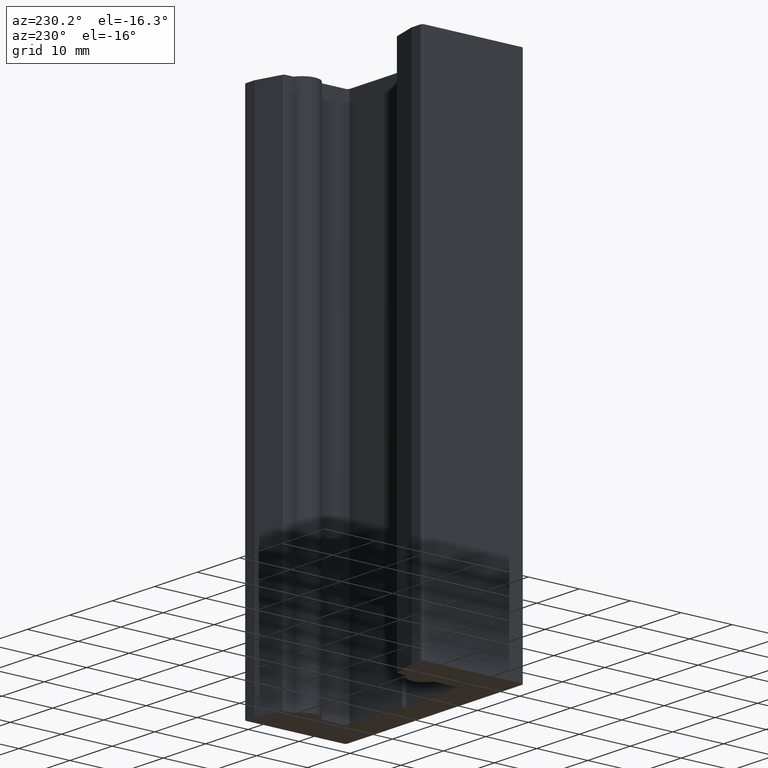
[diagram: clean part render]
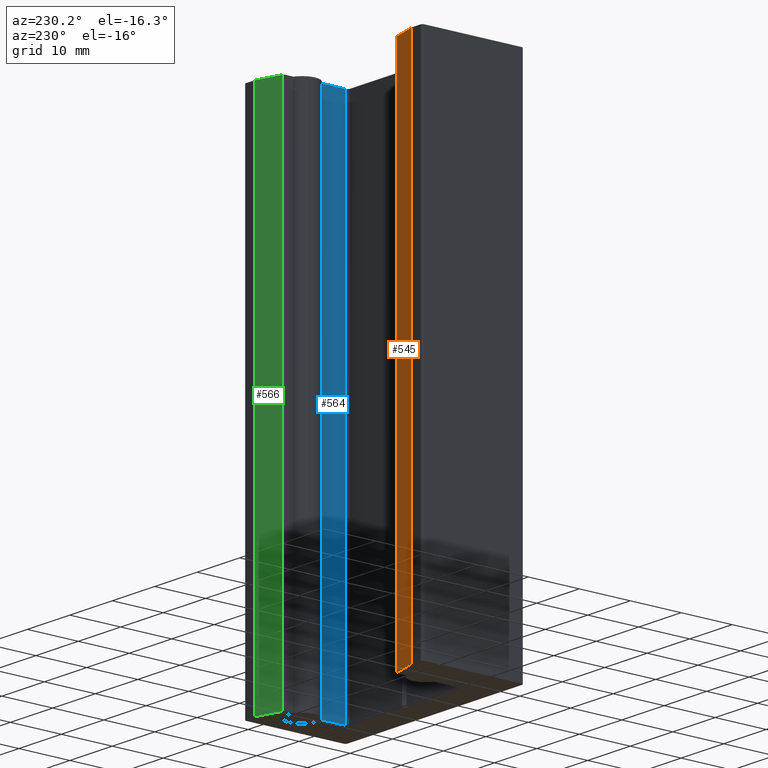
[diagram: same view with three faces highlighted in distinct colors, each labeled with its STEP entity id]
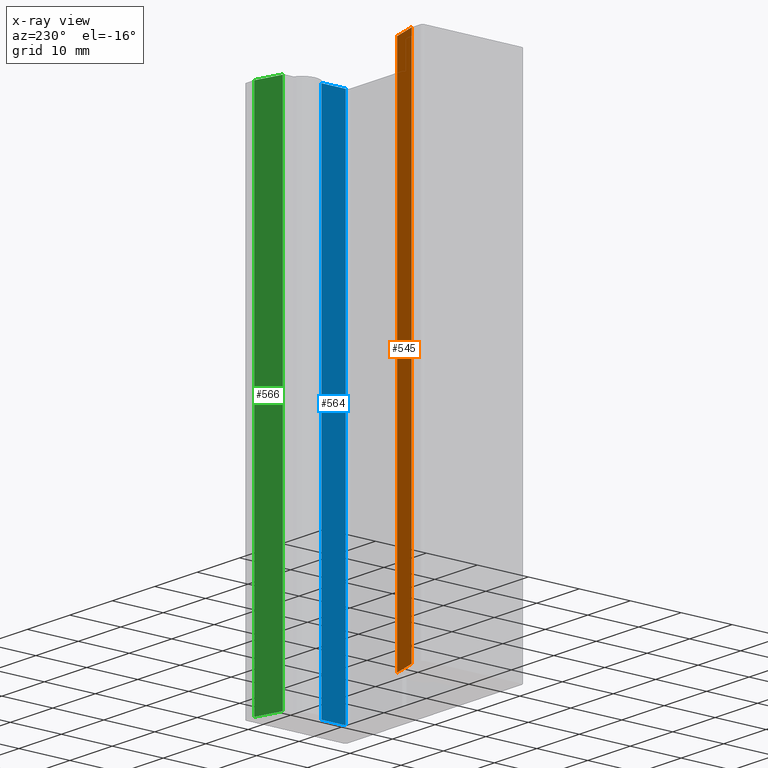
[diagram: x-ray of the same camera — body ghosted, the three highlighted faces saturated]
A machine part, auxiliary view with three faces highlighted in distinct colors.
The next image is the same camera in x-ray (body ghosted, the three faces saturated) — at least one of them is partly hidden behind the body in this view.
Their STEP definitions:

[orange] entity #545 — the highlighted planar face has unit normal (0.2588, 0.9659, 0).
#33=PLANE('',#653);
#54=FACE_OUTER_BOUND('',#84,.T.);
#84=EDGE_LOOP('',(#411,#412,#413,#414));
#121=LINE('',#904,#177);
#130=LINE('',#933,#186);
#131=LINE('',#936,#187);
#132=LINE('',#937,#188);
#177=VECTOR('',#726,10.);
#186=VECTOR('',#749,10.);
#187=VECTOR('',#752,10.);
#188=VECTOR('',#753,10.);
#259=VERTEX_POINT('',#901);
#260=VERTEX_POINT('',#903);
#272=VERTEX_POINT('',#929);
#274=VERTEX_POINT('',#935);
#313=EDGE_CURVE('',#260,#259,#121,.T.);
#328=EDGE_CURVE('',#260,#272,#130,.T.);
#329=EDGE_CURVE('',#259,#274,#131,.T.);
#330=EDGE_CURVE('',#274,#272,#132,.T.);
#411=ORIENTED_EDGE('',*,*,#328,.F.);
#412=ORIENTED_EDGE('',*,*,#313,.T.);
#413=ORIENTED_EDGE('',*,*,#329,.T.);
#414=ORIENTED_EDGE('',*,*,#330,.T.);
#545=ADVANCED_FACE('',(#54),#33,.T.);
#653=AXIS2_PLACEMENT_3D('',#934,#750,#751);
#726=DIRECTION('',(-0.965925826289068,0.258819045102521,0.));
#749=DIRECTION('',(0.,0.,1.));
#750=DIRECTION('center_axis',(0.258819045102521,0.965925826289068,0.));
#751=DIRECTION('ref_axis',(0.,0.,1.));
#752=DIRECTION('',(0.,0.,1.));
#753=DIRECTION('',(0.965925826289068,-0.258819045102521,0.));
#901=CARTESIAN_POINT('',(-18.5,20.,-50.));
#903=CARTESIAN_POINT('',(-13.4723542864693,18.6528463912296,-50.));
#904=CARTESIAN_POINT('',(-13.25,18.5932667397366,-50.));
#929=CARTESIAN_POINT('',(-13.4723542864693,18.6528463912296,50.));
#933=CARTESIAN_POINT('',(-13.4723542864693,18.6528463912296,0.));
#934=CARTESIAN_POINT('Origin',(-18.5,20.,0.));
#935=CARTESIAN_POINT('',(-18.5,20.,50.));
#936=CARTESIAN_POINT('',(-18.5,20.,0.));
#937=CARTESIAN_POINT('',(-13.25,18.5932667397366,50.));

[blue] entity #564 — the highlighted planar face has unit normal (-1, -0, 0).
#45=PLANE('',#679);
#73=FACE_OUTER_BOUND('',#103,.T.);
#103=EDGE_LOOP('',(#487,#488,#489,#490));
#128=LINE('',#926,#184);
#138=LINE('',#953,#194);
#162=LINE('',#1012,#218);
#163=LINE('',#1013,#219);
#184=VECTOR('',#741,10.);
#194=VECTOR('',#769,10.);
#218=VECTOR('',#835,10.);
#219=VECTOR('',#836,10.);
#270=VERTEX_POINT('',#923);
#271=VERTEX_POINT('',#925);
#279=VERTEX_POINT('',#951);
#293=VERTEX_POINT('',#1011);
#324=EDGE_CURVE('',#271,#270,#128,.T.);
#338=EDGE_CURVE('',#279,#270,#138,.T.);
#367=EDGE_CURVE('',#279,#293,#162,.T.);
#368=EDGE_CURVE('',#271,#293,#163,.T.);
#487=ORIENTED_EDGE('',*,*,#338,.F.);
#488=ORIENTED_EDGE('',*,*,#367,.T.);
#489=ORIENTED_EDGE('',*,*,#368,.F.);
#490=ORIENTED_EDGE('',*,*,#324,.T.);
#564=ADVANCED_FACE('',(#73),#45,.T.);
#679=AXIS2_PLACEMENT_3D('',#1010,#833,#834);
#741=DIRECTION('',(4.21111515108782E-16,-1.,0.));
#769=DIRECTION('',(0.,0.,-1.));
#833=DIRECTION('center_axis',(-1.,-4.21111515108782E-16,0.));
#834=DIRECTION('ref_axis',(0.,0.,1.));
#835=DIRECTION('',(-4.21111515108782E-16,1.,0.));
#836=DIRECTION('',(0.,0.,1.));
#923=CARTESIAN_POINT('',(13.25,6.5,-50.));
#925=CARTESIAN_POINT('',(13.25,11.2728219713411,-50.));
#926=CARTESIAN_POINT('',(13.25,11.2728219713411,-50.));
#951=CARTESIAN_POINT('',(13.25,6.5,50.));
#953=CARTESIAN_POINT('',(13.25,6.5,0.));
#1010=CARTESIAN_POINT('Origin',(13.25,6.,0.));
#1011=CARTESIAN_POINT('',(13.25,11.2728219713411,50.));
#1012=CARTESIAN_POINT('',(13.25,11.2728219713411,50.));
#1013=CARTESIAN_POINT('',(13.25,11.2728219713411,0.));

[green] entity #566 — the highlighted planar face has unit normal (-0.2588, 0.9659, 0).
#46=PLANE('',#682);
#75=FACE_OUTER_BOUND('',#105,.T.);
#105=EDGE_LOOP('',(#495,#496,#497,#498));
#110=LINE('',#872,#166);
#115=LINE('',#884,#171);
#146=LINE('',#974,#202);
#164=LINE('',#1017,#220);
#166=VECTOR('',#701,10.);
#171=VECTOR('',#712,10.);
#202=VECTOR('',#791,10.);
#220=VECTOR('',#843,10.);
#245=VERTEX_POINT('',#869);
#246=VERTEX_POINT('',#871);
#250=VERTEX_POINT('',#883);
#285=VERTEX_POINT('',#973);
#297=EDGE_CURVE('',#245,#246,#110,.T.);
#303=EDGE_CURVE('',#250,#246,#115,.T.);
#348=EDGE_CURVE('',#250,#285,#146,.T.);
#370=EDGE_CURVE('',#245,#285,#164,.T.);
#495=ORIENTED_EDGE('',*,*,#297,.F.);
#496=ORIENTED_EDGE('',*,*,#370,.T.);
#497=ORIENTED_EDGE('',*,*,#348,.F.);
#498=ORIENTED_EDGE('',*,*,#303,.T.);
#566=ADVANCED_FACE('',(#75),#46,.T.);
#682=AXIS2_PLACEMENT_3D('',#1016,#841,#842);
#701=DIRECTION('',(0.,0.,-1.));
#712=DIRECTION('',(-0.965925826289068,-0.258819045102521,0.));
#791=DIRECTION('',(0.,0.,1.));
#841=DIRECTION('center_axis',(-0.258819045102521,0.965925826289068,0.));
#842=DIRECTION('ref_axis',(0.,0.,1.));
#843=DIRECTION('',(0.965925826289068,0.258819045102521,0.));
#869=CARTESIAN_POINT('',(13.4723542864692,18.6528463912296,50.));
#871=CARTESIAN_POINT('',(13.4723542864692,18.6528463912296,-50.));
#872=CARTESIAN_POINT('',(13.4723542864692,18.6528463912296,0.));
#883=CARTESIAN_POINT('',(18.5,20.,-50.));
#884=CARTESIAN_POINT('',(18.5,20.,-50.));
#973=CARTESIAN_POINT('',(18.5,20.,50.));
#974=CARTESIAN_POINT('',(18.5,20.,0.));
#1016=CARTESIAN_POINT('Origin',(13.25,18.5932667397366,0.));
#1017=CARTESIAN_POINT('',(18.5,20.,50.));